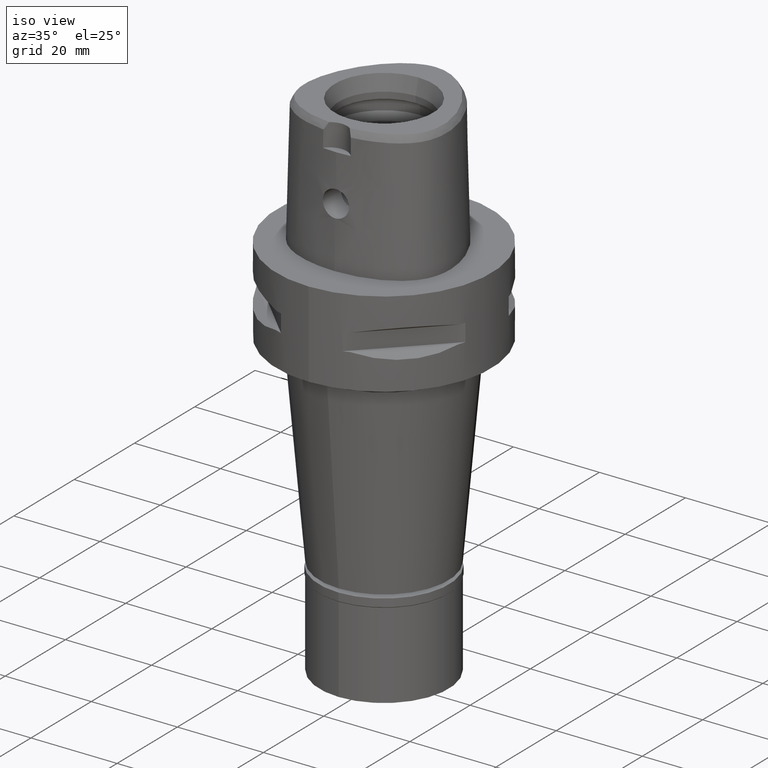
[diagram: clean part render]
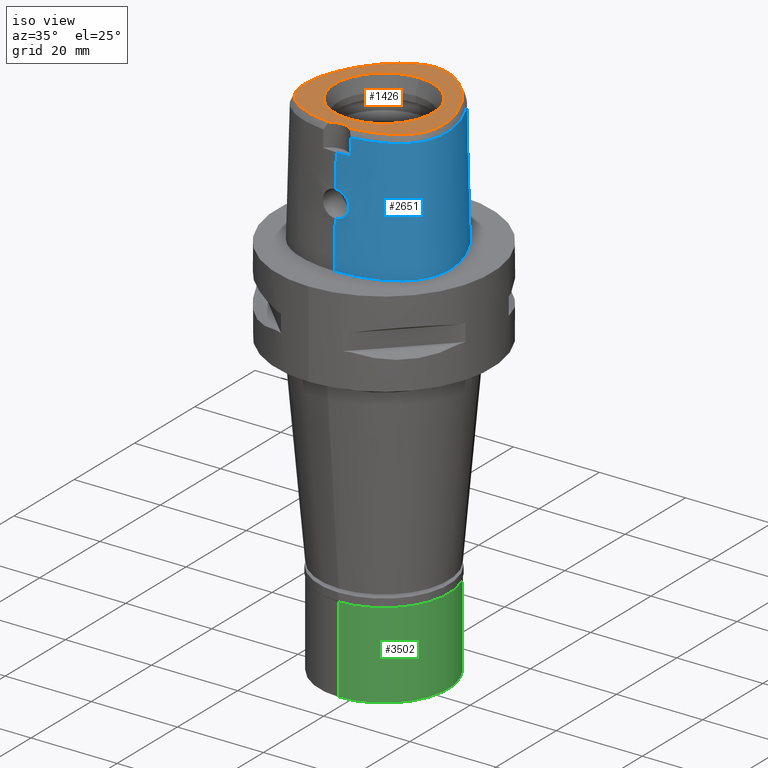
[diagram: same view with three faces highlighted in distinct colors, each labeled with its STEP entity id]
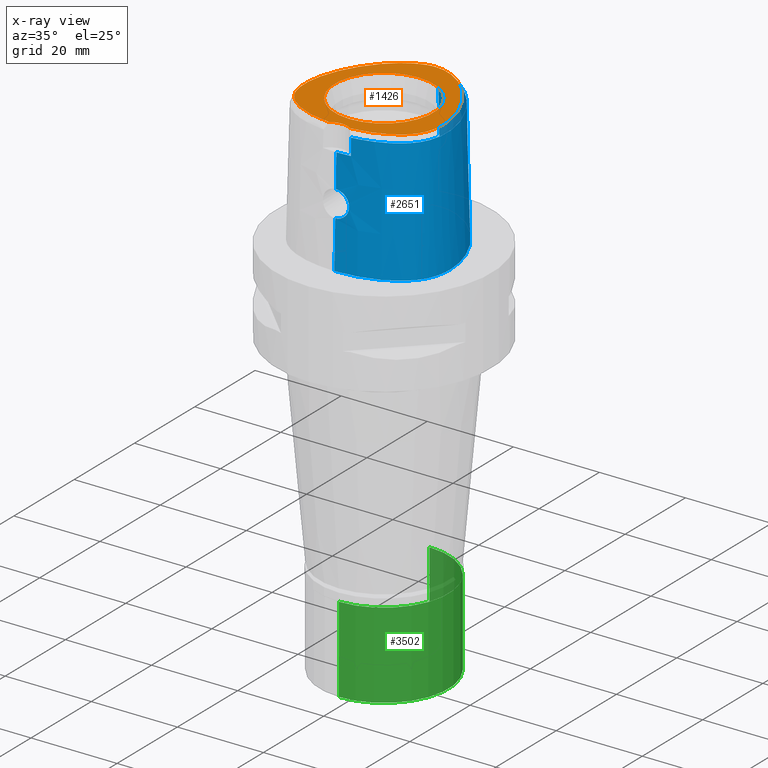
[diagram: x-ray of the same camera — body ghosted, the three highlighted faces saturated]
A machine part, iso view with three faces highlighted in distinct colors.
The next image is the same camera in x-ray (body ghosted, the three faces saturated) — at least one of them is partly hidden behind the body in this view.
Their STEP definitions:

[orange] entity #1426 — the highlighted planar face has unit normal (0, 0, 1).
#41 = CARTESIAN_POINT ( 'NONE',  ( 16.08569500455590884, -4.373922630229269082, 30.00000000000166267 ) ) ;
#47 = CARTESIAN_POINT ( 'NONE',  ( 0.0000000000000000000, -18.00000000000000000, 30.00000000000000000 ) ) ;
#57 = AXIS2_PLACEMENT_3D ( 'NONE', #2057, #3181, #2865 ) ;
#96 = CARTESIAN_POINT ( 'NONE',  ( 15.04259016984696373, -8.247723288182882584, 30.00000000000368061 ) ) ;
#125 = CARTESIAN_POINT ( 'NONE',  ( -8.809985523415420516, -13.33678107331745188, 30.00000000000195044 ) ) ;
#152 = CARTESIAN_POINT ( 'NONE',  ( -12.68647747556617489, 7.869569494475499916, 29.99999999999571898 ) ) ;
#170 = VERTEX_POINT ( 'NONE', #3952 ) ;
#178 = CARTESIAN_POINT ( 'NONE',  ( -0.5679008307149170376, 17.14013367087369488, 30.00000000000155609 ) ) ;
#197 = CARTESIAN_POINT ( 'NONE',  ( -16.11283982316593466, -2.629907404753500266, 29.99999999999511502 ) ) ;
#217 = CARTESIAN_POINT ( 'NONE',  ( -10.60021164902782687, -12.49731984708541432, 29.99999999999103650 ) ) ;
#244 = CARTESIAN_POINT ( 'NONE',  ( 0.0000000000000000000, 11.43782217350000074, 30.00000000000000000 ) ) ;
#273 = VERTEX_POINT ( 'NONE', #3246 ) ;
#288 = CARTESIAN_POINT ( 'NONE',  ( -6.301949014333000064E-11, 17.15328888647999861, 30.00000000000000000 ) ) ;
#318 = CARTESIAN_POINT ( 'NONE',  ( 4.499552315895915200, 15.99769543814564088, 30.00000000000155254 ) ) ;
#366 = CARTESIAN_POINT ( 'NONE',  ( 15.71128456931492678, -6.534031654963481373, 30.00000000000159517 ) ) ;
#392 = CARTESIAN_POINT ( 'NONE',  ( 15.68929135223704208, 0.4919393172822785210, 30.00000000000180833 ) ) ;
#418 = CARTESIAN_POINT ( 'NONE',  ( 15.99982784345844244, -5.151471542954299210, 30.00000000000034817 ) ) ;
#457 = CARTESIAN_POINT ( 'NONE',  ( 0.0000000000000000000, -11.43782217350000074, 30.00000000000000000 ) ) ;
#467 = CARTESIAN_POINT ( 'NONE',  ( 11.11868440496196975, 10.19157821280378862, 29.99999999999626965 ) ) ;
#523 = CARTESIAN_POINT ( 'NONE',  ( -9.750168658359086749, -12.92810664733941017, 29.99999999999818101 ) ) ;
#548 = CARTESIAN_POINT ( 'NONE',  ( -1.160151454488398182, 17.07862209883214888, 29.99999999999194600 ) ) ;
#571 = CARTESIAN_POINT ( 'NONE',  ( -15.68979199461739427, 0.4896967076515434392, 29.99999999999944578 ) ) ;
#578 = ORIENTED_EDGE ( 'NONE', *, *, #1005, .F. ) ;
#590 = CARTESIAN_POINT ( 'NONE',  ( -5.437876102061815153, -14.35707869331343467, 30.00000000000041567 ) ) ;
#641 = DIRECTION ( 'NONE',  ( 0.0000000000000000000, 1.000000000000000000, 0.0000000000000000000 ) ) ;
#668 = ORIENTED_EDGE ( 'NONE', *, *, #4431, .F. ) ;
#730 = CARTESIAN_POINT ( 'NONE',  ( 12.68590586676791787, 7.870511070825828348, 30.00000000000763833 ) ) ;
#756 = CARTESIAN_POINT ( 'NONE',  ( 15.39668103801976251, 1.657188505494204378, 30.00000000000121858 ) ) ;
#830 = CARTESIAN_POINT ( 'NONE',  ( 14.08238499152145984, -9.704590128438834284, 29.99999999999884182 ) ) ;
#888 = CARTESIAN_POINT ( 'NONE',  ( -3.771910472265007197, 16.33551310926722877, 29.99999999999247891 ) ) ;
#889 = DIRECTION ( 'NONE',  ( 0.0000000000000000000, 0.0000000000000000000, 1.000000000000000000 ) ) ;
#910 = CARTESIAN_POINT ( 'NONE',  ( -10.27907733181769245, 11.24278573582945562, 29.99999999999570477 ) ) ;
#921 = PLANE ( 'NONE',  #57 ) ;
#954 = CARTESIAN_POINT ( 'NONE',  ( -13.66338899148588482, -10.18351204678292632, 29.99999999999896261 ) ) ;
#974 = CARTESIAN_POINT ( 'NONE',  ( -2.406542353497000075, -14.80491723099000012, 30.00000000000000000 ) ) ;
#1005 = EDGE_CURVE ( 'NONE', #4547, #2492, #1945, .T. ) ;
#1029 = CARTESIAN_POINT ( 'NONE',  ( -2.406542353497000075, -14.80491723099000012, 30.00000000000000000 ) ) ;
#1046 = CARTESIAN_POINT ( 'NONE',  ( 2.412811123804942337, 16.81558681049688886, 30.00000000000431299 ) ) ;
#1092 = CARTESIAN_POINT ( 'NONE',  ( 9.420872132874794858, 12.20574557692409634, 30.00000000000455103 ) ) ;
#1117 = CARTESIAN_POINT ( 'NONE',  ( 16.12546998862508829, -3.533461825553310565, 30.00000000000177636 ) ) ;
#1130 = ORIENTED_EDGE ( 'NONE', *, *, #3674, .F. ) ;
#1168 = B_SPLINE_CURVE_WITH_KNOTS ( 'NONE', 3,
 ( #288, #4794, #1424, #2929, #4415, #1046, #3306, #4032, #318, #1815, #2951, #2624, #3436, #2649, #1092, #2599, #467, #4106, #730, #2233, #1199, #4084, #1503, #756, #392, #1529, #2701, #3723, #1117, #41, #418, #2676, #366, #3101, #1942, #96, #1864, #4187, #830, #2334, #3359, #3464, #4876, #1609, #3004, #2258, #3818, #1970, #4132, #4491, #3390, #4161, #3749, #1554 ),
 .UNSPECIFIED., .F., .F.,
 ( 4, 1, 1, 1, 1, 1, 1, 1, 1, 1, 1, 1, 1, 1, 1, 1, 1, 1, 1, 1, 1, 1, 1, 1, 1, 1, 1, 1, 1, 1, 1, 1, 1, 1, 1, 1, 1, 1, 1, 1, 1, 1, 1, 1, 1, 1, 1, 1, 1, 1, 1, 4 ),
 ( 0.0000000000000000000, 0.01988587058640001182, 0.03977174117009996124, 0.05965761175399997285, 0.07954348233780006439, 0.09942935292160004490, 0.1193152235055000565, 0.1392010940893000370, 0.1590869646731999376, 0.1789728352568999981, 0.1988587058408000097, 0.2187445764247000213, 0.2386304470083999707, 0.2585163175922999823, 0.2784021881761000738, 0.2982880587598999433, 0.3181739293438000660, 0.3380597999276000465, 0.3579456705113999160, 0.3778315410952000075, 0.3977174116791000191, 0.4176032822630000307, 0.4374891528466999802, 0.4573750234305999918, 0.4772608940143999723, 0.4971467645981999528, 0.5170326351820999644, 0.5369185057659000559, 0.5568043763497000365, 0.5766902469335999371, 0.5965761175174000286, 0.6164619881012000091, 0.6363478586849999896, 0.6562337292689000012, 0.6761195998528000128, 0.6960054704364999623, 0.7158913410203999739, 0.7357772116042000654, 0.7556630821880000459, 0.7755489527718999465, 0.7954348233557000381, 0.8153206939395000186, 0.8352065645232999991, 0.8550924351072000107, 0.8749783056909999912, 0.8948641762747999717, 0.9147500468586799993, 0.9346359174424899718, 0.9545217880263200394, 0.9744076586101599879, 0.9942935291939859477, 1.000000000000000000 ),
 .UNSPECIFIED. ) ;
#1199 = CARTESIAN_POINT ( 'NONE',  ( 14.01089202938220879, 5.377385268371644322, 29.99999999999884537 ) ) ;
#1256 = CARTESIAN_POINT ( 'NONE',  ( -6.047371482395552000, 15.09400374235629627, 29.99999999999695888 ) ) ;
#1279 = CARTESIAN_POINT ( 'NONE',  ( -4.498660734198726807, 15.99814720006351898, 29.99999999999809219 ) ) ;
#1302 = CARTESIAN_POINT ( 'NONE',  ( -14.76322153899911882, -8.744676018998568168, 29.99999999999510081 ) ) ;
#1327 = CARTESIAN_POINT ( 'NONE',  ( -12.04571048960122504, -11.59259605427195794, 30.00000000000043698 ) ) ;
#1352 = CARTESIAN_POINT ( 'NONE',  ( -15.71065119878924499, -6.536303815289343788, 29.99999999999524292 ) ) ;
#1375 = CARTESIAN_POINT ( 'NONE',  ( 0.0000000000000000000, 1.570609519905999910E-14, 30.00000000000000000 ) ) ;
#1424 = CARTESIAN_POINT ( 'NONE',  ( 0.5691917915716874221, 17.14006060249313279, 30.00000000000279599 ) ) ;
#1426 = ADVANCED_FACE ( 'NONE', ( #4312, #3163 ), #921, .T. ) ;
#1429 = DIRECTION ( 'NONE',  ( 0.0000000000000000000, 0.0000000000000000000, 1.000000000000000000 ) ) ;
#1503 = CARTESIAN_POINT ( 'NONE',  ( 15.02033012161947489, 2.869071121501922228, 30.00000000000742517 ) ) ;
#1529 = CARTESIAN_POINT ( 'NONE',  ( 15.90185233182387492, -0.6139199331564287876, 30.00000000000260059 ) ) ;
#1554 = CARTESIAN_POINT ( 'NONE',  ( 2.406543924163999648, -14.80491841401999942, 30.00000000000000000 ) ) ;
#1609 = CARTESIAN_POINT ( 'NONE',  ( 11.36765809995626064, -12.04801986072626896, 29.99999999999928946 ) ) ;
#1637 = CARTESIAN_POINT ( 'NONE',  ( -14.01158736113447567, 5.375902008631413764, 29.99999999999543476 ) ) ;
#1640 = AXIS2_PLACEMENT_3D ( 'NONE', #1375, #3609, #641 ) ;
#1665 = CARTESIAN_POINT ( 'NONE',  ( -13.38439869301539886, 6.635703175840327539, 29.99999999999660005 ) ) ;
#1689 = CARTESIAN_POINT ( 'NONE',  ( -0.1909045559979873630, 17.15328888648054217, 30.00000000000258993 ) ) ;
#1724 = AXIS2_PLACEMENT_3D ( 'NONE', #47, #889, #3156 ) ;
#1727 = CARTESIAN_POINT ( 'NONE',  ( -12.65209017756348508, -11.12734424253381960, 29.99999999999462119 ) ) ;
#1815 = CARTESIAN_POINT ( 'NONE',  ( 5.258649622039278881, 15.58603480842944577, 30.00000000000392220 ) ) ;
#1864 = CARTESIAN_POINT ( 'NONE',  ( 14.76450668990795201, -8.742560395149729047, 29.99999999999902656 ) ) ;
#1942 = CARTESIAN_POINT ( 'NONE',  ( 15.29323375805602936, -7.718923543003024079, 30.00000000000229861 ) ) ;
#1945 = CIRCLE ( 'NONE', #1640, 11.43782217350000074 ) ;
#1970 = CARTESIAN_POINT ( 'NONE',  ( 7.783816186093138079, -13.71424622167364049, 30.00000000000693490 ) ) ;
#1999 = CARTESIAN_POINT ( 'NONE',  ( -16.08550869467113031, -4.376322360226215125, 29.99999999999958433 ) ) ;
#2049 = CARTESIAN_POINT ( 'NONE',  ( -13.18915979441756825, -10.65722997876337352, 30.00000000000185096 ) ) ;
#2057 = CARTESIAN_POINT ( 'NONE',  ( 0.0000000000000000000, 0.0000000000000000000, 30.00000000000000000 ) ) ;
#2071 = CARTESIAN_POINT ( 'NONE',  ( -15.29229544369676397, -7.721097396977087968, 29.99999999999041833 ) ) ;
#2087 = CARTESIAN_POINT ( 'NONE',  ( -6.650243356160714825, -14.05992414833644766, 29.99999999999918998 ) ) ;
#2179 = CIRCLE ( 'NONE', #1724, 4.000000000000000888 ) ;
#2188 = AXIS2_PLACEMENT_3D ( 'NONE', #4400, #1429, #4568 ) ;
#2233 = CARTESIAN_POINT ( 'NONE',  ( 13.38374903490518619, 6.636915464740819282, 30.00000000000765965 ) ) ;
#2258 = CARTESIAN_POINT ( 'NONE',  ( 9.755668685253031214, -12.92551394022801681, 29.99999999999921130 ) ) ;
#2334 = CARTESIAN_POINT ( 'NONE',  ( 13.66559393375323772, -10.18115111193748668, 30.00000000000477129 ) ) ;
#2392 = CARTESIAN_POINT ( 'NONE',  ( -3.077178008231171713, 16.60571267457929068, 30.00000000000302691 ) ) ;
#2418 = CARTESIAN_POINT ( 'NONE',  ( -7.700642921101032989, 13.84415306341328034, 29.99999999999469935 ) ) ;
#2464 = CARTESIAN_POINT ( 'NONE',  ( -15.90223487643932110, -0.6162487013687474313, 29.99999999999604583 ) ) ;
#2492 = VERTEX_POINT ( 'NONE', #457 ) ;
#2599 = CARTESIAN_POINT ( 'NONE',  ( 10.27891984617966692, 11.24296481357532684, 30.00000000000040856 ) ) ;
#2624 = CARTESIAN_POINT ( 'NONE',  ( 6.863227115065573258, 14.51498137220717410, 29.99999999999516120 ) ) ;
#2649 = CARTESIAN_POINT ( 'NONE',  ( 8.557117433366924431, 13.07415149352916117, 30.00000000000385825 ) ) ;
#2676 = CARTESIAN_POINT ( 'NONE',  ( 15.87349190488007622, -5.869792298897957394, 30.00000000000155254 ) ) ;
#2699 = EDGE_CURVE ( 'NONE', #273, #3688, #2179, .T. ) ;
#2701 = CARTESIAN_POINT ( 'NONE',  ( 16.04058509949720346, -1.654113685488118657, 30.00000000000676437 ) ) ;
#2759 = CARTESIAN_POINT ( 'NONE',  ( -16.04083576397818689, -1.656498942829420562, 29.99999999999818812 ) ) ;
#2784 = CARTESIAN_POINT ( 'NONE',  ( -15.87300767660212664, -5.872112237378647848, 29.99999999999599964 ) ) ;
#2807 = CARTESIAN_POINT ( 'NONE',  ( -15.39727819201212711, 1.655076005305267106, 29.99999999999567635 ) ) ;
#2832 = CARTESIAN_POINT ( 'NONE',  ( -6.862723739080258234, 14.51536572209107945, 29.99999999999688427 ) ) ;
#2856 = CARTESIAN_POINT ( 'NONE',  ( -3.123276563984325183, -14.73562494724561134, 29.99999999999758771 ) ) ;
#2865 = DIRECTION ( 'NONE',  ( 1.000000000000000000, 0.0000000000000000000, 0.0000000000000000000 ) ) ;
#2885 = EDGE_LOOP ( 'NONE', ( #1130, #578 ) ) ;
#2887 = ORIENTED_EDGE ( 'NONE', *, *, #4670, .F. ) ;
#2929 = CARTESIAN_POINT ( 'NONE',  ( 1.161482229273305578, 17.07843133414609937, 30.00000000000819256 ) ) ;
#2951 = CARTESIAN_POINT ( 'NONE',  ( 6.048015628560617252, 15.09357031580420561, 30.00000000000423483 ) ) ;
#3004 = CARTESIAN_POINT ( 'NONE',  ( 10.60500548643788576, -12.49469941439725496, 29.99999999999858957 ) ) ;
#3101 = CARTESIAN_POINT ( 'NONE',  ( 15.51702143706069670, -7.148634146069317019, 29.99999999999880274 ) ) ;
#3127 = CARTESIAN_POINT ( 'NONE',  ( -11.11900396222857701, 10.19116357425423303, 29.99999999999539924 ) ) ;
#3156 = DIRECTION ( 'NONE',  ( 0.6016359810410799591, 0.7987703964949736113, 0.0000000000000000000 ) ) ;
#3163 = FACE_BOUND ( 'NONE', #2885, .T. ) ;
#3173 = CARTESIAN_POINT ( 'NONE',  ( -6.301949014333000064E-11, 17.15328888647999861, 30.00000000000000000 ) ) ;
#3181 = DIRECTION ( 'NONE',  ( 0.0000000000000000000, 0.0000000000000000000, 1.000000000000000000 ) ) ;
#3217 = CARTESIAN_POINT ( 'NONE',  ( -15.04149970408577452, -8.249836848500711639, 29.99999999999799272 ) ) ;
#3246 = CARTESIAN_POINT ( 'NONE',  ( 2.406543924163999648, -14.80491841401999942, 30.00000000000000000 ) ) ;
#3306 = CARTESIAN_POINT ( 'NONE',  ( 3.078265684543580960, 16.60532678263120232, 29.99999999999918643 ) ) ;
#3359 = CARTESIAN_POINT ( 'NONE',  ( 13.19176257967057886, -10.65479018522793275, 30.00000000000727240 ) ) ;
#3390 = CARTESIAN_POINT ( 'NONE',  ( 4.159771979224905714, -14.59766906204006531, 30.00000000000397193 ) ) ;
#3436 = CARTESIAN_POINT ( 'NONE',  ( 7.700998872106353588, 13.84384558891505002, 30.00000000000507683 ) ) ;
#3464 = CARTESIAN_POINT ( 'NONE',  ( 12.65514534656411882, -11.12483370673924732, 30.00000000000531841 ) ) ;
#3494 = CARTESIAN_POINT ( 'NONE',  ( -4.150496093830894573, -14.59917355179738152, 29.99999999999548095 ) ) ;
#3517 = CARTESIAN_POINT ( 'NONE',  ( -11.36350786442072369, -12.05063008428200000, 29.99999999999450040 ) ) ;
#3545 = CARTESIAN_POINT ( 'NONE',  ( -14.44611813752734264, -9.226676124713026894, 29.99999999999035083 ) ) ;
#3567 = CARTESIAN_POINT ( 'NONE',  ( -14.55898035934542101, 4.112421202110748020, 29.99999999999535660 ) ) ;
#3587 = CARTESIAN_POINT ( 'NONE',  ( -7.776737509123520020, -13.71663015822216813, 29.99999999999941735 ) ) ;
#3609 = DIRECTION ( 'NONE',  ( 0.0000000000000000000, 0.0000000000000000000, 1.000000000000000000 ) ) ;
#3674 = EDGE_CURVE ( 'NONE', #2492, #4547, #4791, .T. ) ;
#3688 = VERTEX_POINT ( 'NONE', #1029 ) ;
#3723 = CARTESIAN_POINT ( 'NONE',  ( 16.11273027396697088, -2.627494158581305417, 29.99999999999997158 ) ) ;
#3749 = CARTESIAN_POINT ( 'NONE',  ( 2.538962679605194950, -14.79292722369276092, 30.00000000000595435 ) ) ;
#3818 = CARTESIAN_POINT ( 'NONE',  ( 8.816245487876518183, -13.33426548781766208, 30.00000000000608580 ) ) ;
#3849 = CARTESIAN_POINT ( 'NONE',  ( -16.12543283908984648, -3.535877041748260119, 29.99999999999820588 ) ) ;
#3870 = CARTESIAN_POINT ( 'NONE',  ( -14.08052509618616632, -9.706873108417862994, 29.99999999999656808 ) ) ;
#3893 = CARTESIAN_POINT ( 'NONE',  ( -1.772880577021662463, 16.97196055715837915, 29.99999999999856826 ) ) ;
#3945 = CARTESIAN_POINT ( 'NONE',  ( -9.420854217684171417, 12.20577134109715445, 29.99999999999458211 ) ) ;
#3952 = CARTESIAN_POINT ( 'NONE',  ( -6.301949014333000064E-11, 17.15328888647999861, 30.00000000000000000 ) ) ;
#4032 = CARTESIAN_POINT ( 'NONE',  ( 3.772905803807439895, 16.33508552419313631, 30.00000000000678213 ) ) ;
#4084 = CARTESIAN_POINT ( 'NONE',  ( 14.55828366953321229, 4.114142377745556800, 29.99999999999883826 ) ) ;
#4106 = CARTESIAN_POINT ( 'NONE',  ( 11.92667412982332387, 9.061218325782888883, 30.00000000000109068 ) ) ;
#4132 = CARTESIAN_POINT ( 'NONE',  ( 6.658132732489185912, -14.05774790738601787, 30.00000000000065015 ) ) ;
#4145 = EDGE_LOOP ( 'NONE', ( #2887, #668, #4848 ) ) ;
#4161 = CARTESIAN_POINT ( 'NONE',  ( 3.130495111450228407, -14.73481892791614278, 30.00000000000112976 ) ) ;
#4187 = CARTESIAN_POINT ( 'NONE',  ( 14.44767169633470516, -9.224476417585369958, 30.00000000000319744 ) ) ;
#4250 = CARTESIAN_POINT ( 'NONE',  ( -5.257871200567732828, 15.58649213537142231, 29.99999999999456435 ) ) ;
#4276 = CARTESIAN_POINT ( 'NONE',  ( -15.02099409650765516, 2.867135356160174009, 30.00000000000004619 ) ) ;
#4312 = FACE_OUTER_BOUND ( 'NONE', #4145, .T. ) ;
#4343 = B_SPLINE_CURVE_WITH_KNOTS ( 'NONE', 3,
 ( #974, #4695, #2856, #3494, #590, #2087, #3587, #125, #523, #217, #3517, #1327, #1727, #2049, #954, #3870, #3545, #1302, #3217, #2071, #4724, #1352, #2784, #4349, #1999, #3849, #197, #2759, #2464, #571, #2807, #4276, #3567, #1637, #1665, #152, #4673, #3127, #910, #3945, #4620, #2418, #2832, #1256, #4250, #1279, #888, #2392, #4646, #3893, #548, #178, #1689, #3173 ),
 .UNSPECIFIED., .F., .F.,
 ( 4, 1, 1, 1, 1, 1, 1, 1, 1, 1, 1, 1, 1, 1, 1, 1, 1, 1, 1, 1, 1, 1, 1, 1, 1, 1, 1, 1, 1, 1, 1, 1, 1, 1, 1, 1, 1, 1, 1, 1, 1, 1, 1, 1, 1, 1, 1, 1, 1, 1, 1, 4 ),
 ( 0.0000000000000000000, 0.005566907331700066131, 0.02545556918509994659, 0.04534423103860008020, 0.06523289289190004059, 0.08512155474529992105, 0.1050102165987000236, 0.1248988784521999351, 0.1447875403055000065, 0.1646762021588999980, 0.1845648640122999895, 0.2044535258655999499, 0.2243421877191000835, 0.2442308495724999640, 0.2641195114257999244, 0.2840081732792000269, 0.3038968351325999073, 0.3237854969860000098, 0.3436741588394000013, 0.3635628206927999928, 0.3834514825461999843, 0.4033401443995000557, 0.4232288062529999673, 0.4431174681064000698, 0.4630061299597000302, 0.4828947918130999106, 0.5027834536666000442, 0.5226721155199000046, 0.5425607773732999961, 0.5624494392267000986, 0.5823381010799999480, 0.6022267629334999706, 0.6221154247869000731, 0.6420040866403000646, 0.6618927484936000250, 0.6817814103470000164, 0.7016700722005000390, 0.7215587340537999994, 0.7414473959071999909, 0.7613360577605999824, 0.7812247196139999739, 0.8011133814673999654, 0.8210020433207999568, 0.8408907051741000283, 0.8607793670275000197, 0.8806680288810000423, 0.9005566907343299787, 0.9204453525877199782, 0.9403340144411099777, 0.9602226762944999772, 0.9801113381478899766, 1.000000000000000000 ),
 .UNSPECIFIED. ) ;
#4349 = CARTESIAN_POINT ( 'NONE',  ( -15.99949242929436366, -5.153835065648391556, 29.99999999999964118 ) ) ;
#4400 = CARTESIAN_POINT ( 'NONE',  ( 0.0000000000000000000, 1.570609519905999910E-14, 30.00000000000000000 ) ) ;
#4415 = CARTESIAN_POINT ( 'NONE',  ( 1.774127352510904698, 16.97169788999062590, 30.00000000000335021 ) ) ;
#4431 = EDGE_CURVE ( 'NONE', #3688, #170, #4343, .T. ) ;
#4491 = CARTESIAN_POINT ( 'NONE',  ( 5.446614459517417295, -14.35518554873044295, 30.00000000000504841 ) ) ;
#4547 = VERTEX_POINT ( 'NONE', #244 ) ;
#4568 = DIRECTION ( 'NONE',  ( 0.0000000000000000000, -1.000000000000000000, 0.0000000000000000000 ) ) ;
#4620 = CARTESIAN_POINT ( 'NONE',  ( -8.556928701964890749, 13.07433695899067061, 29.99999999999419487 ) ) ;
#4646 = CARTESIAN_POINT ( 'NONE',  ( -2.411640998825605120, 16.81591728050659285, 29.99999999999366196 ) ) ;
#4670 = EDGE_CURVE ( 'NONE', #170, #273, #1168, .T. ) ;
#4673 = CARTESIAN_POINT ( 'NONE',  ( -11.92713521269751453, 9.060544494662593706, 29.99999999999814548 ) ) ;
#4695 = CARTESIAN_POINT ( 'NONE',  ( -2.535517866335931902, -14.79323888261804854, 29.99999999999949907 ) ) ;
#4724 = CARTESIAN_POINT ( 'NONE',  ( -15.51623783591170636, -7.150856098906292146, 29.99999999999220535 ) ) ;
#4791 = CIRCLE ( 'NONE', #2188, 11.43782217350000074 ) ;
#4794 = CARTESIAN_POINT ( 'NONE',  ( 0.1912597614439803528, 17.15328888648430450, 30.00000000000161293 ) ) ;
#4848 = ORIENTED_EDGE ( 'NONE', *, *, #2699, .F. ) ;
#4876 = CARTESIAN_POINT ( 'NONE',  ( 12.04928217776516952, -11.59002493206911666, 29.99999999999637623 ) ) ;

[blue] entity #2651 — the highlighted face is a freeform B-spline surface patch.
#6 = CARTESIAN_POINT ( 'NONE',  ( -0.5443412043912999598, 18.19851680912000091, 19.20397109799000290 ) ) ;
#14 = LINE ( 'NONE', #1139, #3974 ) ;
#24 = CARTESIAN_POINT ( 'NONE',  ( 10.91764517733295214, 11.98972036053776158, 28.52071728562186692 ) ) ;
#26 = CARTESIAN_POINT ( 'NONE',  ( 8.523954173333000028E-11, 18.69499999997999851, 1.833348287997999715E-13 ) ) ;
#27 = CARTESIAN_POINT ( 'NONE',  ( 15.82879716901000222, 3.455165066940999896, 29.09116413853000083 ) ) ;
#40 = CARTESIAN_POINT ( 'NONE',  ( 3.014162081768897661, -15.95399573205362032, 13.52323755265707028 ) ) ;
#94 = CARTESIAN_POINT ( 'NONE',  ( 1.354452607727719693, -16.00396228356807526, 16.73322745257438626 ) ) ;
#191 = CARTESIAN_POINT ( 'NONE',  ( 0.0000000000000000000, -16.02877864023999877, 17.05000000000000071 ) ) ;
#201 = CARTESIAN_POINT ( 'NONE',  ( -0.7264497210165999919, -16.46229666708999773, -0.5704149831085000288 ) ) ;
#208 = VERTEX_POINT ( 'NONE', #3528 ) ;
#229 = CARTESIAN_POINT ( 'NONE',  ( 3.235096591086000117, -15.64751801257999908, 24.70000006080999810 ) ) ;
#250 = CARTESIAN_POINT ( 'NONE',  ( 1.286803344600999877, -15.75925545528999905, 29.09116413853000083 ) ) ;
#257 = CARTESIAN_POINT ( 'NONE',  ( 3.168920890822999770, -15.55911073834000113, 28.52071374672999582 ) ) ;
#272 = CARTESIAN_POINT ( 'NONE',  ( -1.079551357074000073, -16.20136632400999943, 9.316778057439000449 ) ) ;
#289 = B_SPLINE_SURFACE_WITH_KNOTS ( 'NONE', 3, 3, ( 
 ( #1310, #272, #645, #2053 ),
 ( #201, #1332, #2469, #1773 ),
 ( #2076, #980, #1358, #250 ),
 ( #3973, #3264, #3951, #597 ),
 ( #4401, #3926, #4702, #1031 ),
 ( #4016, #3224, #3552, #2095 ),
 ( #621, #3572, #4775, #1006 ),
 ( #1404, #2116, #1733, #4732 ),
 ( #2533, #1712, #4679, #2813 ),
 ( #2840, #1757, #937, #2862 ),
 ( #3244, #577, #3200, #4752 ),
 ( #4377, #2513, #3756, #3708 ),
 ( #688, #348, #2985, #398 ),
 ( #3397, #3010, #3289, #1847 ),
 ( #3680, #2185, #2957, #4804 ),
 ( #1536, #3337, #298, #27 ),
 ( #4067, #762, #666, #1431 ),
 ( #4522, #1901, #4474, #2240 ),
 ( #4446, #2936, #3031, #373 ),
 ( #739, #716, #1152, #2160 ),
 ( #1073, #4422, #3654, #1052 ),
 ( #1453, #2657, #4830, #4856 ),
 ( #1796, #3731, #1510, #2608 ),
 ( #2581, #2268, #6, #2216 ) ),
 .UNSPECIFIED., .F., .F., .F.,
 ( 4, 1, 1, 1, 1, 1, 1, 1, 1, 1, 1, 1, 1, 1, 1, 1, 1, 1, 1, 1, 1, 4 ),
 ( 4, 4 ),
 ( -0.01796851319151999971, 0.0000000000000000000, 0.08333333333359001227, 0.1666666666668000230, 0.2083333333334000115, 0.2500000000000000000, 0.2916666666666999919, 0.3124999999998999689, 0.3333333333332000326, 0.3541666666666000163, 0.3749999999997999933, 0.4166666666665000407, 0.4583333333330000259, 0.4999999999996999622, 0.5833333333328000192, 0.6666666666660999718, 0.7499999999993000044, 0.8333333333325000369, 0.9166666666657999896, 0.9583333333322999747, 1.000000000000000000, 1.011711214084999977 ),
 ( -8.523015300466000007E-09, 1.000000434673999905 ),
 .UNSPECIFIED. ) ;
#298 = CARTESIAN_POINT ( 'NONE',  ( 16.06260381016999972, 3.539545240268000104, 19.20397109799000290 ) ) ;
#302 = CARTESIAN_POINT ( 'NONE',  ( 6.797725644967613598E-08, -15.96503292052179468, 19.60000012629467392 ) ) ;
#348 = CARTESIAN_POINT ( 'NONE',  ( 17.33218217195000221, -5.422849665259000140, 9.316778057439000449 ) ) ;
#365 = CARTESIAN_POINT ( 'NONE',  ( 2.290593162243966141, -16.06186194956454116, 11.98364703425937350 ) ) ;
#373 = CARTESIAN_POINT ( 'NONE',  ( 7.514850429994999637, 15.25369591984999929, 29.09116413853000083 ) ) ;
#391 = CARTESIAN_POINT ( 'NONE',  ( 2.141618861871365631, -16.07744231414377367, 11.82835874812513488 ) ) ;
#398 = CARTESIAN_POINT ( 'NONE',  ( 16.84071370731999906, -5.352498061930999640, 29.09116413853000083 ) ) ;
#416 = CARTESIAN_POINT ( 'NONE',  ( 1.158353828547677766, -16.15167258786862803, 11.17852165137646558 ) ) ;
#440 = CARTESIAN_POINT ( 'NONE',  ( 1.078575942912823882, -16.15565394761469520, 11.14687127074684625 ) ) ;
#446 = CARTESIAN_POINT ( 'NONE',  ( 16.01658383235454508, -8.155509186612755812, 28.52071728562186692 ) ) ;
#466 = CARTESIAN_POINT ( 'NONE',  ( 2.014841840659067795, -15.97504399877426629, 16.29192479722133768 ) ) ;
#469 = EDGE_CURVE ( 'NONE', #1574, #488, #2853, .T. ) ;
#488 = VERTEX_POINT ( 'NONE', #2989 ) ;
#517 = CARTESIAN_POINT ( 'NONE',  ( 1.531589067142497651, -15.99732691922906724, 16.63945844436470622 ) ) ;
#564 = CARTESIAN_POINT ( 'NONE',  ( 2.681016418395044010, -15.93974068711152192, 15.46783011061541480 ) ) ;
#574 = CARTESIAN_POINT ( 'NONE',  ( 7.967839670597753887, 15.83070313310956934, -4.092412471726723788E-07 ) ) ;
#577 = CARTESIAN_POINT ( 'NONE',  ( 16.45596361744999925, -8.350972087704001012, 9.316778057439000449 ) ) ;
#597 = CARTESIAN_POINT ( 'NONE',  ( 4.922186712268000086, -15.43572471317999906, 29.09116413853000083 ) ) ;
#607 = CARTESIAN_POINT ( 'NONE',  ( 3.235096591086000117, -15.64751801257999908, 24.70000006080999810 ) ) ;
#617 = EDGE_CURVE ( 'NONE', #208, #4384, #4416, .T. ) ;
#621 = CARTESIAN_POINT ( 'NONE',  ( 13.51574691712999865, -12.49390941845000036, -0.5704149831085000288 ) ) ;
#645 = CARTESIAN_POINT ( 'NONE',  ( -1.070056051177999956, -15.95437342174000150, 19.20397109799000290 ) ) ;
#666 = CARTESIAN_POINT ( 'NONE',  ( 13.96223202539999875, 8.061115272806999243, 19.20397109799000290 ) ) ;
#688 = CARTESIAN_POINT ( 'NONE',  ( 17.57791640427000246, -5.458025466921999858, -0.5704149831085000288 ) ) ;
#716 = CARTESIAN_POINT ( 'NONE',  ( 4.628819212283000084, 17.52182784772000090, 9.316778057439000449 ) ) ;
#729 = CARTESIAN_POINT ( 'NONE',  ( 1.719191830005405208, -16.11523926597615741, 11.47872671522447874 ) ) ;
#734 = CARTESIAN_POINT ( 'NONE',  ( 3.738627708319722576, -15.49270856215311021, 28.52071728562187403 ) ) ;
#739 = CARTESIAN_POINT ( 'NONE',  ( 4.735056267705000543, 17.74784408584999795, -0.5704149831085000288 ) ) ;
#754 = CARTESIAN_POINT ( 'NONE',  ( 1.306758668653756006, -16.14399373876910815, 11.23972581488055056 ) ) ;
#762 = CARTESIAN_POINT ( 'NONE',  ( 14.17736229192000152, 8.185312112550001018, 9.316778057439000449 ) ) ;
#781 = CARTESIAN_POINT ( 'NONE',  ( 2.796681338616599621, -15.99533385695102439, 12.78273984513034556 ) ) ;
#793 = CARTESIAN_POINT ( 'NONE',  ( 11.68694517090980511, -13.70394532141715516, -4.092412471726723788E-07 ) ) ;
#807 = CARTESIAN_POINT ( 'NONE',  ( 3.049961347112720933, -15.93921296701098278, 13.94964838113522987 ) ) ;
#829 = CARTESIAN_POINT ( 'NONE',  ( 2.951306861662620129, -15.92924742299003960, 14.77626636585411823 ) ) ;
#835 = CARTESIAN_POINT ( 'NONE',  ( 16.99625257116860411, -3.273868232427084468, 28.52071728562186692 ) ) ;
#866 = CARTESIAN_POINT ( 'NONE',  ( 4.728927211212529791, 17.73480469685137706, -4.092412471726723788E-07 ) ) ;
#880 = CARTESIAN_POINT ( 'NONE',  ( 1.898958778535287717, -15.98067541706731376, 16.38724889510307747 ) ) ;
#926 = CARTESIAN_POINT ( 'NONE',  ( 2.836520581861567969, -15.93251973351802242, 15.12113420123081120 ) ) ;
#937 = CARTESIAN_POINT ( 'NONE',  ( 15.78948609236000067, -9.116064045091000878, 19.20397109799000290 ) ) ;
#958 = CARTESIAN_POINT ( 'NONE',  ( 11.46563508809787812, 12.45218750664109209, -4.092412471726723788E-07 ) ) ;
#980 = CARTESIAN_POINT ( 'NONE',  ( 1.309813746369000054, -16.25411905398000201, 9.316778057439000449 ) ) ;
#1006 = CARTESIAN_POINT ( 'NONE',  ( 13.05575583581000032, -11.90823684647999947, 29.09116413853000083 ) ) ;
#1012 = B_SPLINE_CURVE_WITH_KNOTS ( 'NONE', 3,
 ( #1533, #1122, #2603, #3007, #4495, #24, #3333, #4190, #1924, #835, #3054, #2265, #446, #4543, #1898, #2653, #2981, #2704, #4088, #3079, #734, #4469 ),
 .UNSPECIFIED., .F., .F.,
 ( 4, 1, 1, 1, 1, 1, 1, 1, 1, 1, 1, 1, 1, 1, 1, 1, 1, 1, 1, 4 ),
 ( 0.0000000000000000000, 0.04404152929334336636, 0.08808305858541830291, 0.1761661171698852280, 0.2642491757542465569, 0.3523322343386078859, 0.4404152929230747970, 0.5284983515073303773, 0.5725398807996168182, 0.6165814100916917617, 0.6606229393839780917, 0.6826437040299626613, 0.7046644686761587284, 0.7266852333222491023, 0.7487059979682335609, 0.7927475272605200018, 0.8367890565527006386, 0.8808305858448812753, 0.9689136444292530959, 1.000000000000000000 ),
 .UNSPECIFIED. ) ;
#1031 = CARTESIAN_POINT ( 'NONE',  ( 8.697311409069000021, -14.35163080285999904, 29.09116413853000083 ) ) ;
#1045 = ORIENTED_EDGE ( 'NONE', *, *, #2008, .F. ) ;
#1052 = CARTESIAN_POINT ( 'NONE',  ( 1.890839577661999948, 17.83402817812000052, 29.09116413853000083 ) ) ;
#1053 = CARTESIAN_POINT ( 'NONE',  ( 6.782204270401571254E-08, -15.90128720080194036, 22.15000025258929028 ) ) ;
#1073 = CARTESIAN_POINT ( 'NONE',  ( 2.043508294530000047, 18.56419797690000451, -0.5704149831085000288 ) ) ;
#1087 = CARTESIAN_POINT ( 'NONE',  ( 1.084489111473972089, -15.83754148653977367, 24.70000016056459202 ) ) ;
#1103 = CARTESIAN_POINT ( 'NONE',  ( 16.51672825748519102, 3.703437503492814642, -4.092412471726723788E-07 ) ) ;
#1122 = CARTESIAN_POINT ( 'NONE',  ( 0.6295828025439870190, 17.98202997637828915, 28.52071728562186692 ) ) ;
#1139 = CARTESIAN_POINT ( 'NONE',  ( -2.941211955292000151E-11, 17.98202997909999823, 28.52071728569000086 ) ) ;
#1143 = CARTESIAN_POINT ( 'NONE',  ( 2.744096643845214345, -16.00346064512505606, 12.66698413764604148 ) ) ;
#1152 = CARTESIAN_POINT ( 'NONE',  ( 4.522582156860000424, 17.29581160957999941, 19.20397109799000290 ) ) ;
#1169 = CARTESIAN_POINT ( 'NONE',  ( 3.044506884776515321, -15.94333381584075937, 13.81108558313461288 ) ) ;
#1179 = EDGE_CURVE ( 'NONE', #2399, #3299, #1012, .T. ) ;
#1180 = ORIENTED_EDGE ( 'NONE', *, *, #469, .T. ) ;
#1198 = CARTESIAN_POINT ( 'NONE',  ( 3.050149896193001808, -15.93316336324772386, 14.18941404704232667 ) ) ;
#1248 = CARTESIAN_POINT ( 'NONE',  ( 1.262794661676007069, -16.00712763199256017, 16.77676499123156972 ) ) ;
#1290 = ORIENTED_EDGE ( 'NONE', *, *, #1312, .T. ) ;
#1296 = CARTESIAN_POINT ( 'NONE',  ( 1.616099766049514885, -15.99381337938742043, 16.58846643699800083 ) ) ;
#1306 = CARTESIAN_POINT ( 'NONE',  ( 14.38008120580503224, 8.302343755140773496, -4.092412471726723788E-07 ) ) ;
#1310 = CARTESIAN_POINT ( 'NONE',  ( -1.089046662970999835, -16.44835922628000091, -0.5704149831085000288 ) ) ;
#1312 = EDGE_CURVE ( 'NONE', #2562, #208, #4358, .T. ) ;
#1332 = CARTESIAN_POINT ( 'NONE',  ( -0.7201291678956999176, -16.21519136152999607, 9.316778057439000449 ) ) ;
#1336 = CARTESIAN_POINT ( 'NONE',  ( -2.839833977691000589E-12, -16.18126839358999902, 10.94999999999999929 ) ) ;
#1358 = CARTESIAN_POINT ( 'NONE',  ( 1.298308545485000076, -16.00668725462999831, 19.20397109799000290 ) ) ;
#1362 = CARTESIAN_POINT ( 'NONE',  ( 3.191384142201736829, -15.58827398948734633, 27.24714251809000132 ) ) ;
#1404 = CARTESIAN_POINT ( 'NONE',  ( 14.79871908233999989, -11.29217324556000079, -0.5704149831085000288 ) ) ;
#1431 = CARTESIAN_POINT ( 'NONE',  ( 13.74710175889000041, 7.936918433065000222, 29.09116413853000083 ) ) ;
#1453 = CARTESIAN_POINT ( 'NONE',  ( 0.4897519517454999582, 18.72964556329000274, -0.5704149831085000288 ) ) ;
#1470 = CARTESIAN_POINT ( 'NONE',  ( 2.957688824804170391, -15.96752846870872666, 13.22897551199208444 ) ) ;
#1494 = EDGE_CURVE ( 'NONE', #4233, #3299, #4236, .T. ) ;
#1498 = CARTESIAN_POINT ( 'NONE',  ( 2.169052010909447770, -15.77399788591444008, 24.70000016056459202 ) ) ;
#1501 = CARTESIAN_POINT ( 'NONE',  ( 0.3842297570296741571, -16.17878268541346998, 10.96777226348765133 ) ) ;
#1510 = CARTESIAN_POINT ( 'NONE',  ( -0.3630720982687000165, 18.20950115322000329, 19.20397109799000290 ) ) ;
#1533 = CARTESIAN_POINT ( 'NONE',  ( -2.941211955292000151E-11, 17.98202997909999823, 28.52071728569000086 ) ) ;
#1536 = CARTESIAN_POINT ( 'NONE',  ( 16.53021709249000182, 3.708305586923000163, -0.5704149831085000288 ) ) ;
#1553 = CARTESIAN_POINT ( 'NONE',  ( 3.041209740384549498, -15.94490574327321930, 13.76368115324908281 ) ) ;
#1574 = VERTEX_POINT ( 'NONE', #2943 ) ;
#1592 = CARTESIAN_POINT ( 'NONE',  ( 17.16495052764897622, -7.165908206046881723, -4.092412471726723788E-07 ) ) ;
#1608 = CARTESIAN_POINT ( 'NONE',  ( 2.356615372638850570, -15.95714923954086295, 15.93698914121855026 ) ) ;
#1617 = B_SPLINE_CURVE_WITH_KNOTS ( 'NONE', 3,
 ( #4872, #1498, #1087, #3695 ),
 .UNSPECIFIED., .F., .F.,
 ( 4, 4 ),
 ( 0.0000000000000000000, 1.000000000000000000 ),
 .UNSPECIFIED. ) ;
#1618 = CARTESIAN_POINT ( 'NONE',  ( 17.49754713320569977, -0.2285937482037115887, -4.092412471726723788E-07 ) ) ;
#1692 = CARTESIAN_POINT ( 'NONE',  ( 8.523954173333000028E-11, 18.69499999997999851, 1.833348287997999715E-13 ) ) ;
#1712 = CARTESIAN_POINT ( 'NONE',  ( 15.46013578071000083, -10.07579649266999944, 9.316778057439000449 ) ) ;
#1714 = B_SPLINE_CURVE_WITH_KNOTS ( 'NONE', 3,
 ( #1921, #3075, #1501, #4874, #4514, #4464, #4083, #440, #2700, #1941, #2648, #416, #754, #2622, #729, #4490, #4160, #2231, #3771, #3748, #3435, #4105, #391, #3722, #3329, #365, #1863, #3357, #1893, #3387, #3412, #1143, #4131, #781, #2286, #4847, #1470, #40, #3048, #1553, #1169, #2675, #807, #1198, #2308, #4565, #829, #3168, #3146, #4588, #926, #2385, #3538, #4612, #3817, #564, #3561, #2333, #1608, #4320, #4242, #3100, #2015, #3121, #1969, #2435, #4666, #466, #880, #3864, #3510, #3841, #1296, #517, #3463, #94, #1248, #2063, #4269, #2800, #191 ),
 .UNSPECIFIED., .F., .F.,
 ( 4, 2, 2, 1, 1, 1, 2, 2, 2, 2, 2, 1, 1, 2, 2, 2, 2, 2, 1, 2, 2, 2, 2, 2, 2, 2, 2, 1, 1, 1, 2, 2, 2, 2, 2, 1, 1, 2, 2, 2, 2, 2, 2, 2, 2, 4 ),
 ( 0.0000000000000000000, 0.06249999999999655831, 0.09374999999999490685, 0.1093749999999941713, 0.1171874999999937689, 0.1210937499999935330, 0.1230468749999935607, 0.1249999999999935607, 0.1874999999999957812, 0.2187499999999970302, 0.2343749999999977240, 0.2421874999999979738, 0.2460937499999982514, 0.2480468749999981959, 0.2499999999999981126, 0.2812499999999973910, 0.3124999999999966693, 0.3437499999999959477, 0.3593749999999955591, 0.3671874999999951705, 0.3749999999999947264, 0.4374999999999902300, 0.4687499999999880096, 0.4843749999999871214, 0.4999999999999863443, 0.5624999999999824585, 0.5937499999999801270, 0.6093749999999793499, 0.6171874999999791278, 0.6210937499999787947, 0.6230468749999785727, 0.6249999999999783507, 0.6874999999999796829, 0.7187499999999800160, 0.7343749999999803491, 0.7421874999999807931, 0.7460937499999811262, 0.7480468749999809042, 0.7499999999999806821, 0.7812499999999836797, 0.7968749999999849010, 0.8124999999999860112, 0.8437499999999883427, 0.8593749999999894529, 0.8749999999999904521, 1.000000000000000000 ),
 .UNSPECIFIED. ) ;
#1733 = CARTESIAN_POINT ( 'NONE',  ( 14.43869609967999956, -10.95090958695999994, 19.20397109799000290 ) ) ;
#1757 = CARTESIAN_POINT ( 'NONE',  ( 16.00394162323999936, -9.239880003930000640, 9.316778057439000449 ) ) ;
#1773 = CARTESIAN_POINT ( 'NONE',  ( -0.7074880616538000710, -15.72098075040999632, 29.09116413853000083 ) ) ;
#1796 = CARTESIAN_POINT ( 'NONE',  ( -0.3829342216691000167, 18.70352949967000100, -0.5704149831085000288 ) ) ;
#1847 = CARTESIAN_POINT ( 'NONE',  ( 16.98194806033000148, -3.273961227375000060, 29.09116413853000083 ) ) ;
#1863 = CARTESIAN_POINT ( 'NONE',  ( 2.417729193041619151, -16.04731727844056266, 12.13798983179893654 ) ) ;
#1893 = CARTESIAN_POINT ( 'NONE',  ( 2.587629427706296781, -16.02556131009806961, 12.38252332209277640 ) ) ;
#1898 = CARTESIAN_POINT ( 'NONE',  ( 15.07117004567362351, -9.793013887526788253, 28.52071728562186692 ) ) ;
#1901 = CARTESIAN_POINT ( 'NONE',  ( 11.28662484525000131, 12.30111473230000030, 9.316778057439000449 ) ) ;
#1920 = EDGE_CURVE ( 'NONE', #4233, #1574, #1617, .T. ) ;
#1921 = CARTESIAN_POINT ( 'NONE',  ( -2.839833977691000589E-12, -16.18126839358999902, 10.94999999999999929 ) ) ;
#1924 = CARTESIAN_POINT ( 'NONE',  ( 16.79165444019614739, -0.3537785292841507112, 28.52071728562186692 ) ) ;
#1941 = CARTESIAN_POINT ( 'NONE',  ( 1.138812104614874698, -16.15267061231298129, 11.17057442770714815 ) ) ;
#1952 = CARTESIAN_POINT ( 'NONE',  ( 15.64884225085088865, -10.21298828727616481, -4.092412471726723788E-07 ) ) ;
#1969 = CARTESIAN_POINT ( 'NONE',  ( 2.170299400654049915, -15.96703807926083662, 16.14297866672072601 ) ) ;
#1980 = CARTESIAN_POINT ( 'NONE',  ( 13.50690094114342443, -12.48264649245455971, -4.092412471726723788E-07 ) ) ;
#2008 = EDGE_CURVE ( 'NONE', #2399, #4384, #14, .T. ) ;
#2015 = CARTESIAN_POINT ( 'NONE',  ( 2.196663950529426756, -15.96564993910013364, 16.11602529263611316 ) ) ;
#2053 = CARTESIAN_POINT ( 'NONE',  ( -1.060560745281999839, -15.70738051947000180, 29.09116413853000083 ) ) ;
#2063 = CARTESIAN_POINT ( 'NONE',  ( 1.217867162102865608, -16.00861105600192857, 16.79681041045230572 ) ) ;
#2074 = CARTESIAN_POINT ( 'NONE',  ( 0.6801907866061716046, 18.69500001023167357, -4.092412471726723788E-07 ) ) ;
#2076 = CARTESIAN_POINT ( 'NONE',  ( 1.321318947253000253, -16.50155085332000127, -0.5704149831085000288 ) ) ;
#2095 = CARTESIAN_POINT ( 'NONE',  ( 11.32630876774000050, -13.06981785256000173, 29.09116413853000083 ) ) ;
#2116 = CARTESIAN_POINT ( 'NONE',  ( 14.61870759100999884, -11.12154141625999948, 9.316778057439000449 ) ) ;
#2160 = CARTESIAN_POINT ( 'NONE',  ( 4.416345101437999965, 17.06979537145000236, 29.09116413853000083 ) ) ;
#2163 = CARTESIAN_POINT ( 'NONE',  ( 2.030224829794000080E-07, -15.83752876601000281, 24.70000006102999990 ) ) ;
#2185 = CARTESIAN_POINT ( 'NONE',  ( 17.26695525566999834, -0.2694874902618000223, 9.316778057439000449 ) ) ;
#2216 = CARTESIAN_POINT ( 'NONE',  ( -0.5293534872135999825, 17.95181534095999965, 29.09116413853000083 ) ) ;
#2231 = CARTESIAN_POINT ( 'NONE',  ( 1.979050802151729238, -16.09313883417979341, 11.67852903115554675 ) ) ;
#2240 = CARTESIAN_POINT ( 'NONE',  ( 10.90668475468999965, 11.98047049064000014, 29.09116413853000083 ) ) ;
#2265 = CARTESIAN_POINT ( 'NONE',  ( 16.47905536661016512, -6.962316254603442722, 28.52071728562186692 ) ) ;
#2268 = CARTESIAN_POINT ( 'NONE',  ( -0.5593289215690000482, 18.44521827727000129, 9.316778057439000449 ) ) ;
#2286 = CARTESIAN_POINT ( 'NONE',  ( 2.806282367902104724, -15.99380854387472795, 12.80500890572250761 ) ) ;
#2295 = CARTESIAN_POINT ( 'NONE',  ( 14.78833381144490389, -11.28232910862455185, -4.092412471726723788E-07 ) ) ;
#2308 = CARTESIAN_POINT ( 'NONE',  ( 3.032153927794988491, -15.93034332000362063, 14.38503233290865069 ) ) ;
#2333 = CARTESIAN_POINT ( 'NONE',  ( 2.459696765391575557, -15.95161770387217359, 15.80683248070965163 ) ) ;
#2385 = CARTESIAN_POINT ( 'NONE',  ( 2.829313881745448622, -15.93280562740808826, 15.13908937170598179 ) ) ;
#2399 = VERTEX_POINT ( 'NONE', #3427 ) ;
#2435 = CARTESIAN_POINT ( 'NONE',  ( 2.164021906619611357, -15.96736812113673487, 16.14931344321801632 ) ) ;
#2469 = CARTESIAN_POINT ( 'NONE',  ( -0.7138086147746999233, -15.96808605596999797, 19.20397109799000290 ) ) ;
#2513 = CARTESIAN_POINT ( 'NONE',  ( 16.94089118471000077, -7.099401425624999540, 9.316778057439000449 ) ) ;
#2533 = CARTESIAN_POINT ( 'NONE',  ( 15.66039569940999954, -10.22138777850999958, -0.5704149831085000288 ) ) ;
#2535 = ORIENTED_EDGE ( 'NONE', *, *, #1494, .F. ) ;
#2548 = ORIENTED_EDGE ( 'NONE', *, *, #1179, .T. ) ;
#2562 = VERTEX_POINT ( 'NONE', #3160 ) ;
#2581 = CARTESIAN_POINT ( 'NONE',  ( -0.5743166387467999456, 18.69191974542000168, -0.5704149831085000288 ) ) ;
#2603 = CARTESIAN_POINT ( 'NONE',  ( 1.893775678555658315, 17.84807068954979314, 28.52071728562186692 ) ) ;
#2608 = CARTESIAN_POINT ( 'NONE',  ( -0.3531410365684999886, 17.96248698000000132, 29.09116413853000083 ) ) ;
#2622 = CARTESIAN_POINT ( 'NONE',  ( 1.466707760567582453, -16.13401281180739844, 11.31839107164912761 ) ) ;
#2648 = CARTESIAN_POINT ( 'NONE',  ( 1.150837130457877722, -16.15205889506641412, 11.17544410961270529 ) ) ;
#2651 = ADVANCED_FACE ( 'NONE', ( #2886 ), #289, .T. ) ;
#2653 = CARTESIAN_POINT ( 'NONE',  ( 14.26907046692504544, -10.79012245165330519, 28.52071728562186692 ) ) ;
#2657 = CARTESIAN_POINT ( 'NONE',  ( 0.4768940199510999789, 18.48195206863000095, 9.316778057439000449 ) ) ;
#2661 = CARTESIAN_POINT ( 'NONE',  ( 8.946741559694485701, -15.03902344716627226, -4.092412471726723788E-07 ) ) ;
#2675 = CARTESIAN_POINT ( 'NONE',  ( 3.048883421515427017, -15.94046337244651923, 13.90502257973829003 ) ) ;
#2700 = CARTESIAN_POINT ( 'NONE',  ( 1.120763508485753235, -16.15358090583465867, 11.16333240776540059 ) ) ;
#2704 = CARTESIAN_POINT ( 'NONE',  ( 11.33338046474596439, -13.08225241901946490, 28.52071728562186692 ) ) ;
#2800 = CARTESIAN_POINT ( 'NONE',  ( 0.3724840145390382329, -16.02877864024000232, 17.04999999999999716 ) ) ;
#2813 = CARTESIAN_POINT ( 'NONE',  ( 15.05961594332000075, -9.784613920976001467, 29.09116413853000083 ) ) ;
#2824 = ORIENTED_EDGE ( 'NONE', *, *, #617, .T. ) ;
#2840 = CARTESIAN_POINT ( 'NONE',  ( 16.21839715411000071, -9.363695962769998715, -0.5704149831085000288 ) ) ;
#2853 = B_SPLINE_CURVE_WITH_KNOTS ( 'NONE', 3,
 ( #2163, #1053, #302, #3292 ),
 .UNSPECIFIED., .F., .F.,
 ( 4, 4 ),
 ( 0.0000000000000000000, 1.000000000000000000 ),
 .UNSPECIFIED. ) ;
#2862 = CARTESIAN_POINT ( 'NONE',  ( 15.57503056149000109, -8.992248086250999251, 29.09116413853000083 ) ) ;
#2886 = FACE_OUTER_BOUND ( 'NONE', #3184, .T. ) ;
#2936 = CARTESIAN_POINT ( 'NONE',  ( 7.822764680713000907, 15.64590996779000065, 9.316778057439000449 ) ) ;
#2943 = CARTESIAN_POINT ( 'NONE',  ( 2.030224829794000080E-07, -15.83752876601000281, 24.70000006102999990 ) ) ;
#2957 = CARTESIAN_POINT ( 'NONE',  ( 17.02224551882000014, -0.3128849289070000372, 19.20397109799000290 ) ) ;
#2981 = CARTESIAN_POINT ( 'NONE',  ( 13.06460231237919700, -11.91950040983078196, 28.52071728562186692 ) ) ;
#2985 = CARTESIAN_POINT ( 'NONE',  ( 17.08644793963999930, -5.387673863595000334, 19.20397109799000290 ) ) ;
#2989 = CARTESIAN_POINT ( 'NONE',  ( 0.0000000000000000000, -16.02877864023999877, 17.05000000000000071 ) ) ;
#3007 = CARTESIAN_POINT ( 'NONE',  ( 4.422474504766046977, 17.08283549833119608, 28.52071728562186692 ) ) ;
#3010 = CARTESIAN_POINT ( 'NONE',  ( 17.47781006497000078, -3.270737582623000073, 9.316778057439000449 ) ) ;
#3012 = CARTESIAN_POINT ( 'NONE',  ( 1.683697723122958179, -16.45500001022990233, -4.092412471726723788E-07 ) ) ;
#3031 = CARTESIAN_POINT ( 'NONE',  ( 7.668807555354000272, 15.44980294381999997, 19.20397109799000290 ) ) ;
#3048 = CARTESIAN_POINT ( 'NONE',  ( 3.027798455715707160, -15.95003164277662755, 13.62032956274716788 ) ) ;
#3054 = CARTESIAN_POINT ( 'NONE',  ( 16.85489147434688206, -5.354527548487546085, 28.52071728562186692 ) ) ;
#3060 = CARTESIAN_POINT ( 'NONE',  ( 16.66912843075925821, -8.445800785415022105, -4.092412471726723788E-07 ) ) ;
#3075 = CARTESIAN_POINT ( 'NONE',  ( 0.1898211197316636012, -16.18126839359000257, 10.95000000000000107 ) ) ;
#3079 = CARTESIAN_POINT ( 'NONE',  ( 5.902447799197656053, -15.16907841529205037, 28.52071728562187047 ) ) ;
#3100 = CARTESIAN_POINT ( 'NONE',  ( 2.232748692361829157, -15.96374470980125437, 16.07819212816551868 ) ) ;
#3112 = ORIENTED_EDGE ( 'NONE', *, *, #1920, .T. ) ;
#3121 = CARTESIAN_POINT ( 'NONE',  ( 2.180887052763815337, -15.96648089881372634, 16.13220278528723384 ) ) ;
#3146 = CARTESIAN_POINT ( 'NONE',  ( 2.883981873338816282, -15.93080840504316598, 14.99485968243840972 ) ) ;
#3160 = CARTESIAN_POINT ( 'NONE',  ( -2.839833977691000589E-12, -16.18126839358999902, 10.94999999999999929 ) ) ;
#3168 = CARTESIAN_POINT ( 'NONE',  ( 2.907704111751936882, -15.93016185020670505, 14.92213459652817598 ) ) ;
#3184 = EDGE_LOOP ( 'NONE', ( #1045, #2548, #2535, #3112, #1180, #4515, #1290, #2824 ) ) ;
#3200 = CARTESIAN_POINT ( 'NONE',  ( 16.22974790713000104, -8.250337555777999654, 19.20397109799000290 ) ) ;
#3224 = CARTESIAN_POINT ( 'NONE',  ( 11.57144723442000078, -13.50085874036000000, 9.316778057439000449 ) ) ;
#3228 = CARTESIAN_POINT ( 'NONE',  ( 3.213444788215948034, -15.61774735051721308, 25.97357128944999971 ) ) ;
#3244 = CARTESIAN_POINT ( 'NONE',  ( 16.68217932776000012, -8.451606619630000594, -0.5704149831085000288 ) ) ;
#3264 = CARTESIAN_POINT ( 'NONE',  ( 5.009809400842000215, -15.92506869898999788, 9.316778057439000449 ) ) ;
#3289 = CARTESIAN_POINT ( 'NONE',  ( 17.22987906264999936, -3.272349404998999844, 19.20397109799000290 ) ) ;
#3292 = CARTESIAN_POINT ( 'NONE',  ( 0.0000000000000000000, -16.02877864023999877, 17.05000000000000071 ) ) ;
#3299 = VERTEX_POINT ( 'NONE', #3797 ) ;
#3329 = CARTESIAN_POINT ( 'NONE',  ( 2.223227574825688446, -16.06911398227925147, 11.90960399256265134 ) ) ;
#3333 = CARTESIAN_POINT ( 'NONE',  ( 13.75951381385775996, 7.944084035686641343, 28.52071728562186692 ) ) ;
#3337 = CARTESIAN_POINT ( 'NONE',  ( 16.29641045132999722, 3.623925413595000311, 9.316778057439000449 ) ) ;
#3357 = CARTESIAN_POINT ( 'NONE',  ( 2.478737183293503676, -16.03986208745135045, 12.22013516387799648 ) ) ;
#3387 = CARTESIAN_POINT ( 'NONE',  ( 2.638828814086501939, -16.01860464026841768, 12.46732066277610862 ) ) ;
#3397 = CARTESIAN_POINT ( 'NONE',  ( 17.72574106728999865, -3.269125760247999946, -0.5704149831085000288 ) ) ;
#3412 = CARTESIAN_POINT ( 'NONE',  ( 2.709953204667776117, -16.00846021379442874, 12.59958595632848422 ) ) ;
#3427 = CARTESIAN_POINT ( 'NONE',  ( -2.941211955292000151E-11, 17.98202997909999823, 28.52071728569000086 ) ) ;
#3435 = CARTESIAN_POINT ( 'NONE',  ( 2.114644142900157675, -16.08015782783996528, 11.80200641014588747 ) ) ;
#3447 = CARTESIAN_POINT ( 'NONE',  ( 17.71143736587981365, -3.269218749933689772, -4.092412471726723788E-07 ) ) ;
#3463 = CARTESIAN_POINT ( 'NONE',  ( 1.399412083726094824, -16.00233608542867714, 16.71046994217811132 ) ) ;
#3474 = CARTESIAN_POINT ( 'NONE',  ( 16.20602472851325970, -9.356552739500257232, -4.092412471726723788E-07 ) ) ;
#3510 = CARTESIAN_POINT ( 'NONE',  ( 1.779262221764184027, -15.98633376436653108, 16.47774649146145265 ) ) ;
#3528 = CARTESIAN_POINT ( 'NONE',  ( -2.281349859231999968E-11, -16.45500000000000185, 1.845560741268999878E-13 ) ) ;
#3538 = CARTESIAN_POINT ( 'NONE',  ( 2.824468722466921822, -15.93300016794371032, 15.15105085638172433 ) ) ;
#3552 = CARTESIAN_POINT ( 'NONE',  ( 11.44887800108000064, -13.28533829645999909, 19.20397109799000290 ) ) ;
#3561 = CARTESIAN_POINT ( 'NONE',  ( 2.520317714005605669, -15.94834054842959148, 15.72060082174885842 ) ) ;
#3572 = CARTESIAN_POINT ( 'NONE',  ( 13.36241655669000039, -12.29868522780000006, 9.316778057439000449 ) ) ;
#3654 = CARTESIAN_POINT ( 'NONE',  ( 1.941729149950999878, 18.07741811105000096, 19.20397109799000290 ) ) ;
#3680 = CARTESIAN_POINT ( 'NONE',  ( 17.51166499250999919, -0.2260900516166000074, -0.5704149831085000288 ) ) ;
#3695 = CARTESIAN_POINT ( 'NONE',  ( 2.030224829794000080E-07, -15.83752876601000281, 24.70000006102999990 ) ) ;
#3708 = CARTESIAN_POINT ( 'NONE',  ( 16.46533668182000198, -6.958244183584000098, 29.09116413853000083 ) ) ;
#3722 = CARTESIAN_POINT ( 'NONE',  ( 2.147962331140050640, -16.07679769526338376, 11.83463701146478719 ) ) ;
#3731 = CARTESIAN_POINT ( 'NONE',  ( -0.3730031599688999888, 18.45651532644999904, 9.316778057439000449 ) ) ;
#3748 = CARTESIAN_POINT ( 'NONE',  ( 2.076784380856320666, -16.08390063340898024, 11.76594178763887477 ) ) ;
#3756 = CARTESIAN_POINT ( 'NONE',  ( 16.70311393326999649, -7.028822804605000307, 19.20397109799000290 ) ) ;
#3771 = CARTESIAN_POINT ( 'NONE',  ( 2.044225401069972303, -16.08701963945121349, 11.73626748625382632 ) ) ;
#3797 = CARTESIAN_POINT ( 'NONE',  ( 3.168920890822999770, -15.55911073834000113, 28.52071374672999582 ) ) ;
#3803 = CARTESIAN_POINT ( 'NONE',  ( 17.56373943949966332, -5.455996095205096985, -4.092412471726723788E-07 ) ) ;
#3817 = CARTESIAN_POINT ( 'NONE',  ( 2.759961640973260355, -15.93564958624567929, 15.30749493561488705 ) ) ;
#3828 = CARTESIAN_POINT ( 'NONE',  ( 5.051093169386434489, -16.15562501012858476, -4.092412471726723788E-07 ) ) ;
#3841 = CARTESIAN_POINT ( 'NONE',  ( 1.737183591012293249, -15.98828192606207743, 16.50739953107602176 ) ) ;
#3864 = CARTESIAN_POINT ( 'NONE',  ( 1.859549321997237215, -15.98255794229956628, 16.41807320997656561 ) ) ;
#3905 = DIRECTION ( 'NONE',  ( -1.823509279151955696E-12, -0.02499051295371941192, -0.9996876883618752707 ) ) ;
#3926 = CARTESIAN_POINT ( 'NONE',  ( 8.866858698611999046, -14.81887808391999961, 9.316778057439000449 ) ) ;
#3951 = CARTESIAN_POINT ( 'NONE',  ( 4.965998056554999707, -15.68039670609000247, 19.20397109799000290 ) ) ;
#3973 = CARTESIAN_POINT ( 'NONE',  ( 5.053620745127998859, -16.16974069189999952, -0.5704149831085000288 ) ) ;
#3974 = VECTOR ( 'NONE', #4564, 1000.000000000000114 ) ;
#4000 = EDGE_CURVE ( 'NONE', #2562, #488, #1714, .T. ) ;
#4016 = CARTESIAN_POINT ( 'NONE',  ( 11.69401646775999914, -13.71637918426000091, -0.5704149831085000288 ) ) ;
#4067 = CARTESIAN_POINT ( 'NONE',  ( 14.39249255842999986, 8.309508952293001016, -0.5704149831085000288 ) ) ;
#4083 = CARTESIAN_POINT ( 'NONE',  ( 0.9939297242844670199, -16.15959612542589596, 11.11569146158232257 ) ) ;
#4088 = CARTESIAN_POINT ( 'NONE',  ( 8.702202469521795436, -14.36510984286243797, 28.52071728562186692 ) ) ;
#4105 = CARTESIAN_POINT ( 'NONE',  ( 2.130834279644790996, -16.07853149005615023, 11.81777582520527758 ) ) ;
#4123 = VECTOR ( 'NONE', #3905, 1000.000000000000114 ) ;
#4131 = CARTESIAN_POINT ( 'NONE',  ( 2.775961287962938506, -15.99857004330711874, 12.73620107527709244 ) ) ;
#4142 = CARTESIAN_POINT ( 'NONE',  ( -2.281349859231999968E-11, -16.45500000000000185, 1.845560741268999878E-13 ) ) ;
#4160 = CARTESIAN_POINT ( 'NONE',  ( 1.935527014321325012, -16.09705987419097539, 11.64218429699863755 ) ) ;
#4190 = CARTESIAN_POINT ( 'NONE',  ( 15.84228676733096641, 3.460033425849828870, 28.52071728562186692 ) ) ;
#4233 = VERTEX_POINT ( 'NONE', #607 ) ;
#4236 = B_SPLINE_CURVE_WITH_KNOTS ( 'NONE', 3,
 ( #229, #3228, #1362, #257 ),
 .UNSPECIFIED., .F., .F.,
 ( 4, 4 ),
 ( 0.0000000000000000000, 1.000000000000000000 ),
 .UNSPECIFIED. ) ;
#4242 = CARTESIAN_POINT ( 'NONE',  ( 2.262444582314412145, -15.96216938760132109, 16.04565077979857435 ) ) ;
#4269 = CARTESIAN_POINT ( 'NONE',  ( 0.7741482008192043240, -16.02257322970521258, 16.98085959781950294 ) ) ;
#4279 = CARTESIAN_POINT ( 'NONE',  ( 2.040572359773544786, 18.55015626007491747, -4.092412471726723788E-07 ) ) ;
#4320 = CARTESIAN_POINT ( 'NONE',  ( 2.320231428406520635, -15.95909571851455233, 15.98050410814317424 ) ) ;
#4358 = LINE ( 'NONE', #1336, #4123 ) ;
#4377 = CARTESIAN_POINT ( 'NONE',  ( 17.17866843615999883, -7.169980046645999749, -0.5704149831085000288 ) ) ;
#4384 = VERTEX_POINT ( 'NONE', #26 ) ;
#4401 = CARTESIAN_POINT ( 'NONE',  ( 8.951632343383998602, -15.05250172444999990, -0.5704149831085000288 ) ) ;
#4416 = B_SPLINE_CURVE_WITH_KNOTS ( 'NONE', 3,
 ( #4142, #3012, #3828, #2661, #793, #1980, #2295, #1952, #3474, #3060, #1592, #3803, #3447, #1618, #1103, #1306, #958, #574, #866, #4279, #2074, #1692 ),
 .UNSPECIFIED., .F., .F.,
 ( 4, 1, 1, 1, 1, 1, 1, 1, 1, 1, 1, 1, 1, 1, 1, 1, 1, 1, 1, 4 ),
 ( 0.0000000000000000000, 0.08333333333359001227, 0.1666666666668000230, 0.2083333333334000115, 0.2500000000000000000, 0.2916666666666999919, 0.3124999999998999689, 0.3333333333332000326, 0.3541666666666000163, 0.3749999999997999933, 0.4166666666665000407, 0.4583333333330000259, 0.4999999999996999622, 0.5833333333328000192, 0.6666666666660999718, 0.7499999999993000044, 0.8333333333325000369, 0.9166666666657999896, 0.9583333333322999747, 1.000000000000000000 ),
 .UNSPECIFIED. ) ;
#4422 = CARTESIAN_POINT ( 'NONE',  ( 1.992618722240999896, 18.32080804398000140, 9.316778057439000449 ) ) ;
#4446 = CARTESIAN_POINT ( 'NONE',  ( 7.976721806072998966, 15.84201699175999778, -0.5704149831085000288 ) ) ;
#4464 = CARTESIAN_POINT ( 'NONE',  ( 0.9209982704608932202, -16.16262558226603829, 11.09193420934168017 ) ) ;
#4469 = CARTESIAN_POINT ( 'NONE',  ( 3.168920890822999770, -15.55911073834000113, 28.52071374672999582 ) ) ;
#4474 = CARTESIAN_POINT ( 'NONE',  ( 11.09665479997000048, 12.14079261146999933, 19.20397109799000290 ) ) ;
#4490 = CARTESIAN_POINT ( 'NONE',  ( 1.805376232578053131, -16.10834772480095367, 11.53923680359283210 ) ) ;
#4495 = CARTESIAN_POINT ( 'NONE',  ( 7.523733068099031307, 15.26501041873741826, 28.52071728562186692 ) ) ;
#4514 = CARTESIAN_POINT ( 'NONE',  ( 0.7748558813734800488, -16.16821842566323042, 11.04831638025728324 ) ) ;
#4515 = ORIENTED_EDGE ( 'NONE', *, *, #4000, .F. ) ;
#4522 = CARTESIAN_POINT ( 'NONE',  ( 11.47659489054000126, 12.46143685312999949, -0.5704149831085000288 ) ) ;
#4543 = CARTESIAN_POINT ( 'NONE',  ( 15.58740368722670055, -8.999391713746737409, 28.52071728562186692 ) ) ;
#4564 = DIRECTION ( 'NONE',  ( 4.018687646957882921E-12, 0.02499051285785929000, -0.9996876883642715761 ) ) ;
#4565 = CARTESIAN_POINT ( 'NONE',  ( 2.975249651912823090, -15.92914271478720956, 14.67846616982686747 ) ) ;
#4588 = CARTESIAN_POINT ( 'NONE',  ( 2.852909278454515807, -15.93189406616820492, 15.07915126970514486 ) ) ;
#4612 = CARTESIAN_POINT ( 'NONE',  ( 2.821425036078518467, -15.93312409536605934, 15.15848376097718209 ) ) ;
#4666 = CARTESIAN_POINT ( 'NONE',  ( 2.088968113521979753, -15.97131126311716898, 16.22457167555463187 ) ) ;
#4679 = CARTESIAN_POINT ( 'NONE',  ( 15.25987586200999857, -9.930205206822000363, 19.20397109799000290 ) ) ;
#4702 = CARTESIAN_POINT ( 'NONE',  ( 8.782085053840999578, -14.58525444339000110, 19.20397109799000290 ) ) ;
#4732 = CARTESIAN_POINT ( 'NONE',  ( 14.25868460834000118, -10.78027775764999951, 29.09116413853000083 ) ) ;
#4752 = CARTESIAN_POINT ( 'NONE',  ( 16.00353219682000017, -8.149703023852998385, 29.09116413853000083 ) ) ;
#4775 = CARTESIAN_POINT ( 'NONE',  ( 13.20908619625000036, -12.10346103714000066, 19.20397109799000290 ) ) ;
#4804 = CARTESIAN_POINT ( 'NONE',  ( 16.77753578197999929, -0.3562823675523000277, 29.09116413853000083 ) ) ;
#4830 = CARTESIAN_POINT ( 'NONE',  ( 0.4640360881566999995, 18.23425857396999916, 19.20397109799000290 ) ) ;
#4847 = CARTESIAN_POINT ( 'NONE',  ( 2.899217746531570938, -15.97873758491097718, 13.02871175161756234 ) ) ;
#4856 = CARTESIAN_POINT ( 'NONE',  ( 0.4511781563623000202, 17.98656507930999737, 29.09116413853000083 ) ) ;
#4872 = CARTESIAN_POINT ( 'NONE',  ( 3.235096591086000117, -15.64751801257999908, 24.70000006080999810 ) ) ;
#4874 = CARTESIAN_POINT ( 'NONE',  ( 0.6770584128688965642, -16.17132556088389350, 11.02443681068122849 ) ) ;

[green] entity #3502 — the highlighted cylindrical surface (partial cylindrical patch) has radius 15 mm, axis along (0, 0, -1).
#98 = CYLINDRICAL_SURFACE ( 'NONE', #2903, 15.00000000000000000 ) ;
#236 = ORIENTED_EDGE ( 'NONE', *, *, #4587, .F. ) ;
#307 = VERTEX_POINT ( 'NONE', #3657 ) ;
#325 = CARTESIAN_POINT ( 'NONE',  ( 0.0000000000000000000, 15.00000000000000000, -2.000000000000000000 ) ) ;
#344 = CARTESIAN_POINT ( 'NONE',  ( 0.0000000000000000000, 0.0000000000000000000, -2.000000000000000000 ) ) ;
#680 = CARTESIAN_POINT ( 'NONE',  ( 0.0000000000000000000, 15.00000000000000000, -2.000000000000000000 ) ) ;
#871 = LINE ( 'NONE', #2741, #1399 ) ;
#1095 = DIRECTION ( 'NONE',  ( 0.0000000000000000000, 1.000000000000000000, 0.0000000000000000000 ) ) ;
#1217 = EDGE_CURVE ( 'NONE', #2690, #307, #3514, .T. ) ;
#1252 = DIRECTION ( 'NONE',  ( 0.0000000000000000000, -1.000000000000000000, 0.0000000000000000000 ) ) ;
#1399 = VECTOR ( 'NONE', #2323, 1000.000000000000000 ) ;
#1560 = AXIS2_PLACEMENT_3D ( 'NONE', #344, #2679, #1095 ) ;
#1563 = EDGE_LOOP ( 'NONE', ( #2745, #3179, #4713, #236 ) ) ;
#1611 = CARTESIAN_POINT ( 'NONE',  ( 0.0000000000000000000, 0.0000000000000000000, 0.0000000000000000000 ) ) ;
#1883 = CIRCLE ( 'NONE', #2358, 15.00000000000000000 ) ;
#2323 = DIRECTION ( 'NONE',  ( 0.0000000000000000000, 0.0000000000000000000, -1.000000000000000000 ) ) ;
#2358 = AXIS2_PLACEMENT_3D ( 'NONE', #2703, #4591, #1252 ) ;
#2394 = EDGE_CURVE ( 'NONE', #307, #2869, #871, .T. ) ;
#2507 = DIRECTION ( 'NONE',  ( 0.0000000000000000000, 0.0000000000000000000, -1.000000000000000000 ) ) ;
#2679 = DIRECTION ( 'NONE',  ( 0.0000000000000000000, 0.0000000000000000000, -1.000000000000000000 ) ) ;
#2690 = VERTEX_POINT ( 'NONE', #325 ) ;
#2703 = CARTESIAN_POINT ( 'NONE',  ( 0.0000000000000000000, 0.0000000000000000000, -22.00000000000000000 ) ) ;
#2729 = DIRECTION ( 'NONE',  ( 0.0000000000000000000, 0.0000000000000000000, -1.000000000000000000 ) ) ;
#2741 = CARTESIAN_POINT ( 'NONE',  ( 0.0000000000000000000, -15.00000000000000000, -2.000000000000000000 ) ) ;
#2745 = ORIENTED_EDGE ( 'NONE', *, *, #1217, .T. ) ;
#2869 = VERTEX_POINT ( 'NONE', #3495 ) ;
#2903 = AXIS2_PLACEMENT_3D ( 'NONE', #1611, #2729, #3844 ) ;
#3179 = ORIENTED_EDGE ( 'NONE', *, *, #2394, .T. ) ;
#3411 = EDGE_CURVE ( 'NONE', #2869, #4041, #1883, .T. ) ;
#3459 = VECTOR ( 'NONE', #2507, 1000.000000000000000 ) ;
#3466 = FACE_OUTER_BOUND ( 'NONE', #1563, .T. ) ;
#3495 = CARTESIAN_POINT ( 'NONE',  ( 0.0000000000000000000, -15.00000000000000000, -22.00000000000000000 ) ) ;
#3502 = ADVANCED_FACE ( 'NONE', ( #3466 ), #98, .T. ) ;
#3514 = CIRCLE ( 'NONE', #1560, 15.00000000000000000 ) ;
#3657 = CARTESIAN_POINT ( 'NONE',  ( 0.0000000000000000000, -15.00000000000000000, -2.000000000000000000 ) ) ;
#3699 = LINE ( 'NONE', #680, #3459 ) ;
#3844 = DIRECTION ( 'NONE',  ( 0.0000000000000000000, -1.000000000000000000, 0.0000000000000000000 ) ) ;
#3913 = CARTESIAN_POINT ( 'NONE',  ( 0.0000000000000000000, 15.00000000000000000, -22.00000000000000000 ) ) ;
#4041 = VERTEX_POINT ( 'NONE', #3913 ) ;
#4587 = EDGE_CURVE ( 'NONE', #2690, #4041, #3699, .T. ) ;
#4591 = DIRECTION ( 'NONE',  ( 0.0000000000000000000, 0.0000000000000000000, 1.000000000000000000 ) ) ;
#4713 = ORIENTED_EDGE ( 'NONE', *, *, #3411, .T. ) ;